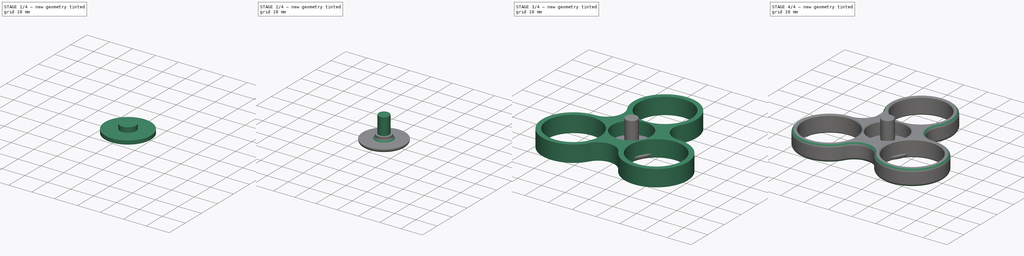
[diagram: build sequence overview — one tinted view per stage of 4, left to right]
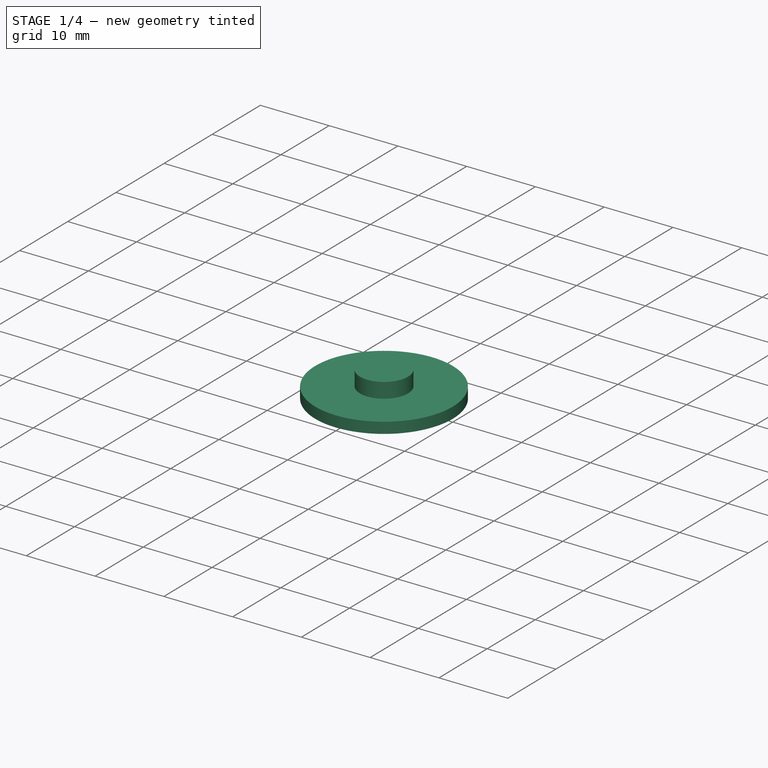
[diagram: stage 1 of 4 — iso view after this stage's code; geometry added in this stage tinted green]
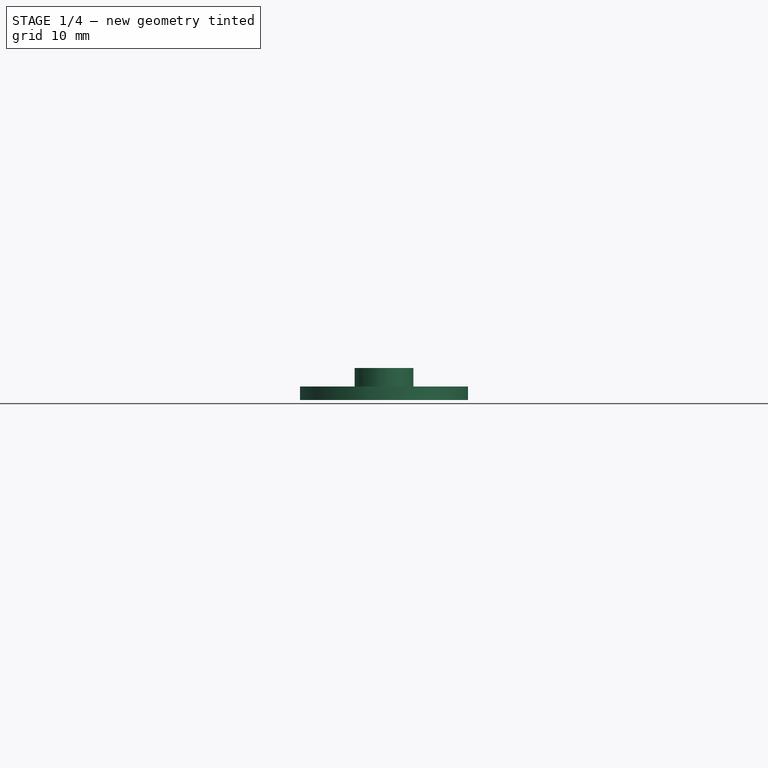
[diagram: stage 1 of 4 — front view after this stage's code; geometry added in this stage tinted green]
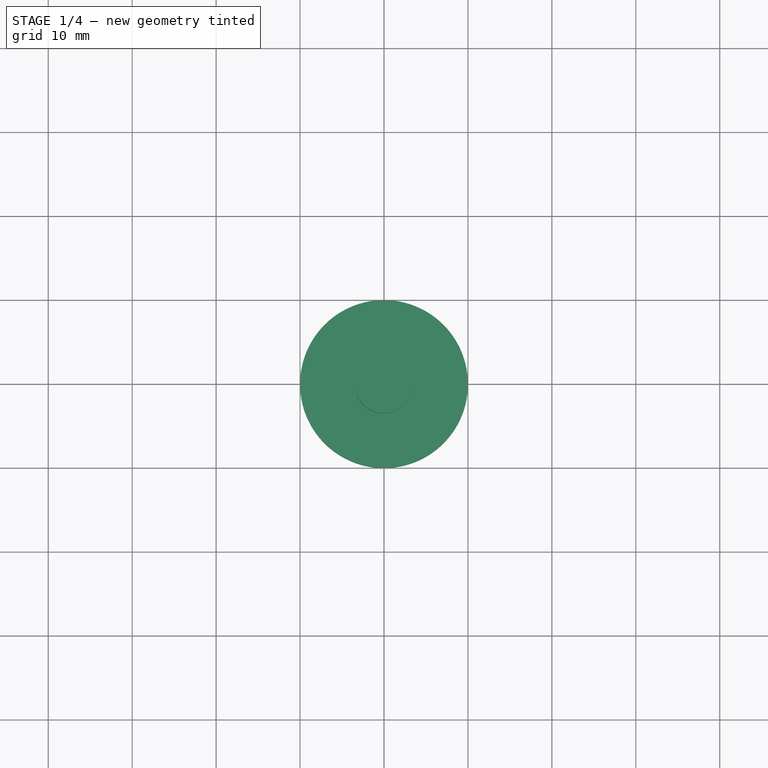
[diagram: stage 1 of 4 — top view after this stage's code; geometry added in this stage tinted green]
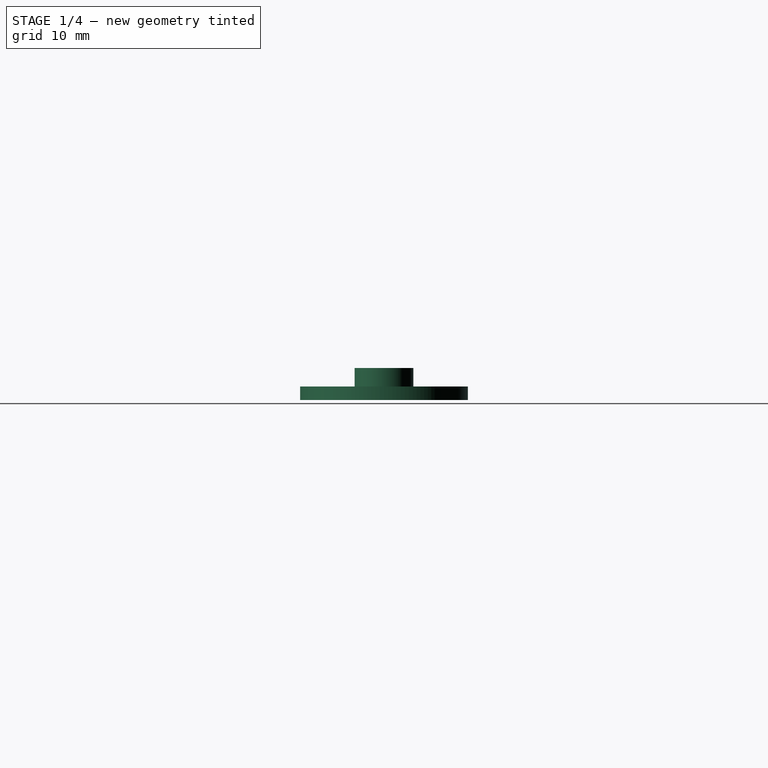
[diagram: stage 1 of 4 — right view after this stage's code; geometry added in this stage tinted green]
FCSTD DOCUMENT  (FreeCAD 0.18.2R)
Label: Spinner
License: All rights reserved
LicenseURL: http://en.wikipedia.org/wiki/All_rights_reserved
objects: Sketcher::SketchObject×5, PartDesign::Pad×4, PartDesign::Fillet×3, PartDesign::Body×3, PartDesign::Chamfer×1, PartDesign::FeatureBase×1, PartDesign::Pocket×1, App::Part×1
note: 23 computed .brp shape members not serialized (recipe doc carries the construction recipe); baked Part::Feature solids carry a one-line shape summary decoded from their .brp

FEATURE [PartDesign::Body] Body
  Group = -> [Sketch,Pad,Chamfer,Fillet]
  Origin = -> Origin001
  Tip = -> Fillet
FEATURE [Sketcher::SketchObject] Sketch001
  MapMode = 5
  Support = -> [XY_Plane002]
  sketch-geometry (3):
    g0: Circle CenterX=0 CenterY=0 CenterZ=0 NormalX=0 NormalY=0 NormalZ=1 AngleXU=0 Radius=10
    g1: Circle [constr] CenterX=0 CenterY=0 CenterZ=0 NormalX=0 NormalY=0 NormalZ=1 AngleXU=0 Radius=3.5
    g2: Circle [constr] CenterX=0 CenterY=0 CenterZ=0 NormalX=0 NormalY=0 NormalZ=1 AngleXU=0 Radius=2.52
  constraints (6):
    c: Coincident(g0,g-1)
    c: Radius(g0) = 10
    c: Coincident(g1,g0)
    c: Coincident(g2,g0)
    c: Radius(g1) = 3.5
    c: Radius(g2) = 2.52
FEATURE [PartDesign::Pad] Pad001
  Length = 1.6
  Length2 = 100
  Profile = -> Sketch001
  Type = 0
FEATURE [Sketcher::SketchObject] Sketch002
  AttachmentOffset = pos=(0,0,1.6) rot=(0,0,1;0rad)
  MapMode = 5
  Placement = pos=(0,0,1.6) rot=(0,0,1;0rad)
  Support = -> [XY_Plane002]
  expr: AttachmentOffset.Base.z = Pad001.Length
  sketch-geometry (3):
    g0: Circle [constr] CenterX=0 CenterY=0 CenterZ=0 NormalX=0 NormalY=0 NormalZ=1 AngleXU=0 Radius=9
    g1: Circle CenterX=0 CenterY=0 CenterZ=0 NormalX=0 NormalY=0 NormalZ=1 AngleXU=0 Radius=3.5
    g2: Circle [constr] CenterX=0 CenterY=0 CenterZ=0 NormalX=0 NormalY=0 NormalZ=1 AngleXU=0 Radius=2.4
  constraints (6):
    c: Coincident(g0,g-1)
    c: Radius(g0) = 9
    c: Coincident(g1,g0)
    c: Coincident(g2,g0)
    c: Radius(g1) = 3.5
    c: Radius(g2) = 2.4
FEATURE [Sketcher::SketchObject] Sketch003
  AttachmentOffset = pos=(0,0,3.8) rot=(0,0,1;0rad)
  MapMode = 5
  Placement = pos=(0,0,3.8) rot=(0,0,1;0rad)
  Support = -> [XY_Plane002]
  expr: AttachmentOffset.Base.z = Sketch002.Placement.Base.z + Pad002.Length
  sketch-geometry (3):
    g0: Circle [constr] CenterX=0 CenterY=0 CenterZ=0 NormalX=0 NormalY=0 NormalZ=1 AngleXU=0 Radius=9
    g1: Circle [constr] CenterX=0 CenterY=0 CenterZ=0 NormalX=0 NormalY=0 NormalZ=1 AngleXU=0 Radius=3.5
    g2: Circle CenterX=0 CenterY=0 CenterZ=0 NormalX=0 NormalY=0 NormalZ=1 AngleXU=0 Radius=2.53
  constraints (6):
    c: Coincident(g0,g-1)
    c: Radius(g0) = 9
    c: Coincident(g1,g0)
    c: Coincident(g2,g0)
    c: Radius(g1) = 3.5
    c: Radius(g2) = 2.53
FEATURE [PartDesign::Pad] Pad002
  BaseFeature = -> Pad001
  Length = 2.2
  Length2 = 100
  Profile = -> Sketch002
  Type = 0
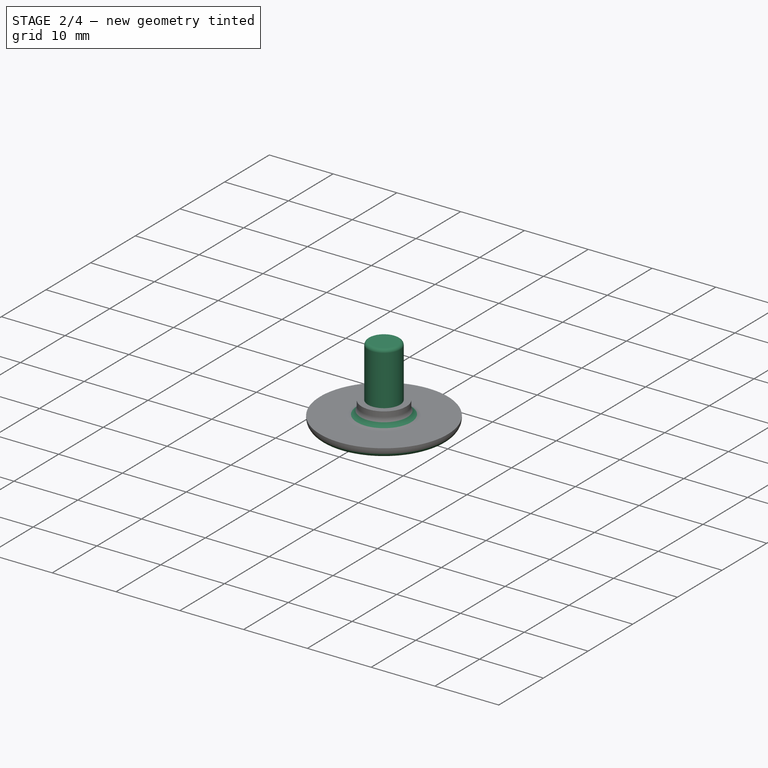
[diagram: stage 2 of 4 — iso view after this stage's code; geometry added in this stage tinted green]
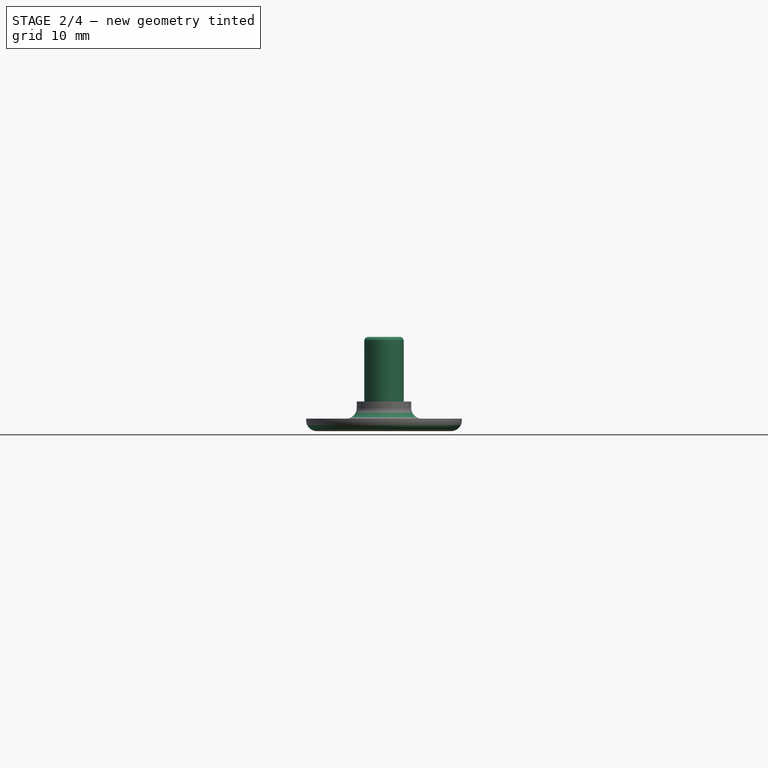
[diagram: stage 2 of 4 — front view after this stage's code; geometry added in this stage tinted green]
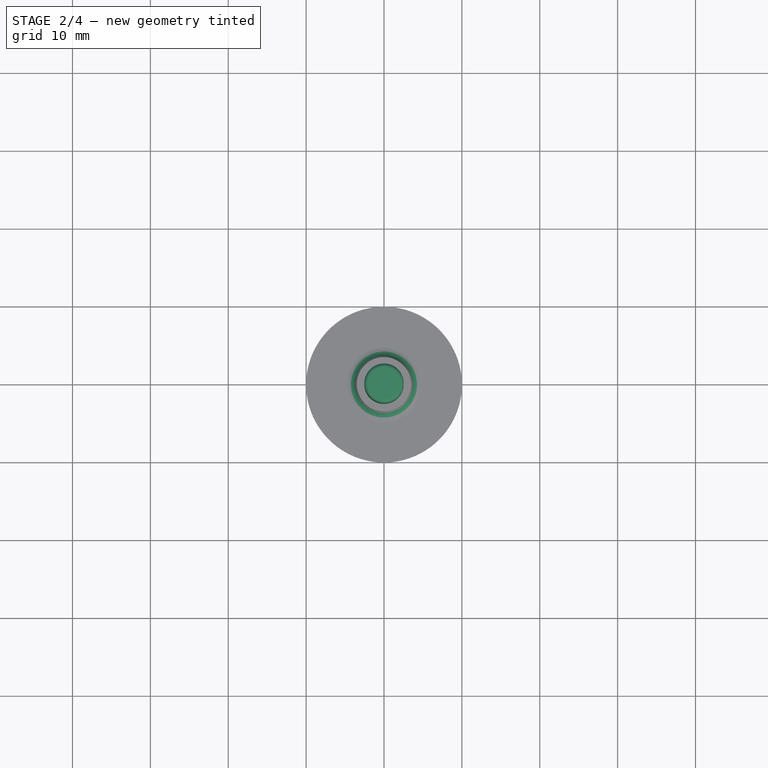
[diagram: stage 2 of 4 — top view after this stage's code; geometry added in this stage tinted green]
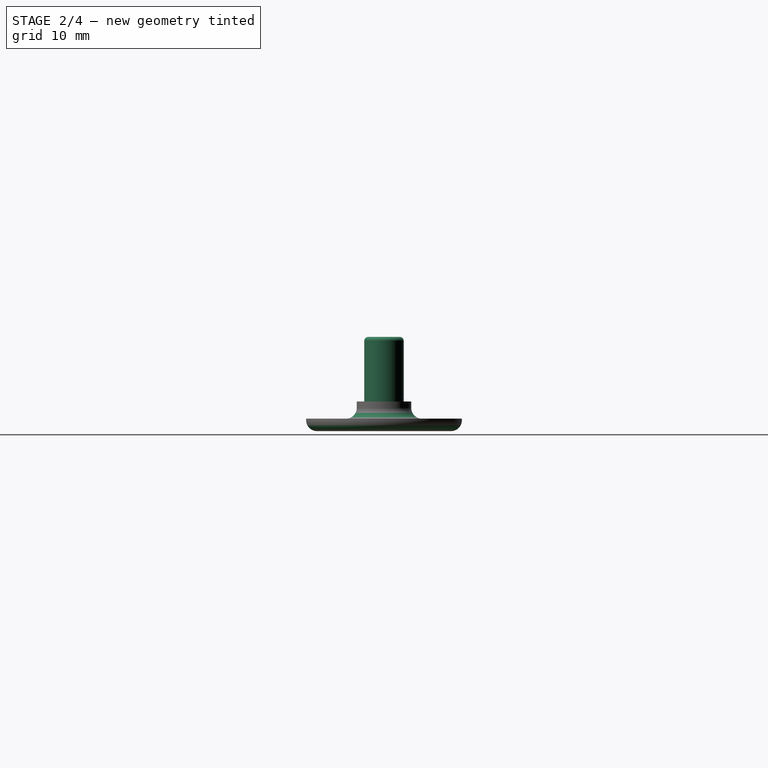
[diagram: stage 2 of 4 — right view after this stage's code; geometry added in this stage tinted green]
FEATURE [PartDesign::Fillet] Fillet001
  Base = -> Pad002 [Edge2,Edge4]
  BaseFeature = -> Pad002
  Radius = 1.39
FEATURE [Sketcher::SketchObject] Sketch004
  AttachmentOffset = pos=(0,0,3.8) rot=(0,0,1;0rad)
  MapMode = 5
  Placement = pos=(0,0,3.8) rot=(0,0,1;0rad)
  Support = -> [XY_Plane003]
  expr: AttachmentOffset.Base.z = Sketch002.Placement.Base.z + Pad002.Length
  sketch-geometry (3):
    g0: Circle [constr] CenterX=0 CenterY=0 CenterZ=0 NormalX=0 NormalY=0 NormalZ=1 AngleXU=0 Radius=9
    g1: Circle [constr] CenterX=0 CenterY=0 CenterZ=0 NormalX=0 NormalY=0 NormalZ=1 AngleXU=0 Radius=3.5
    g2: Circle CenterX=0 CenterY=0 CenterZ=0 NormalX=0 NormalY=0 NormalZ=1 AngleXU=0 Radius=2.63
  constraints (6):
    c: Coincident(g0,g-1)
    c: Radius(g0) = 9
    c: Coincident(g1,g0)
    c: Coincident(g2,g0)
    c: Radius(g1) = 3.5
    c: Radius(g2) = 2.63
FEATURE [PartDesign::Pad] Pad003
  BaseFeature = -> Fillet001
  Length = 8.3
  Length2 = 100
  Profile = -> Sketch003
  Type = 0
FEATURE [PartDesign::Body] Body002
  Group = -> [Clone,Sketch004,Pocket]
  Origin = -> Origin003
  Placement = pos=(22,0,0) rot=(0,0,1;0rad)
  Tip = -> Pocket
FEATURE [PartDesign::Fillet] Fillet002
  Base = -> Pad003 [Face9]
  BaseFeature = -> Pad003
  Radius = 0.5
FEATURE [PartDesign::Body] Body001  label="Center"
  Group = -> [Sketch001,Pad001,Sketch002,Pad002,Fillet001,Sketch003,Pad003,Fillet002]
  Origin = -> Origin002
  Tip = -> Fillet002
FEATURE [App::Part] Part
  Group = -> [Body,Body001,Body002]
  Origin = -> Origin
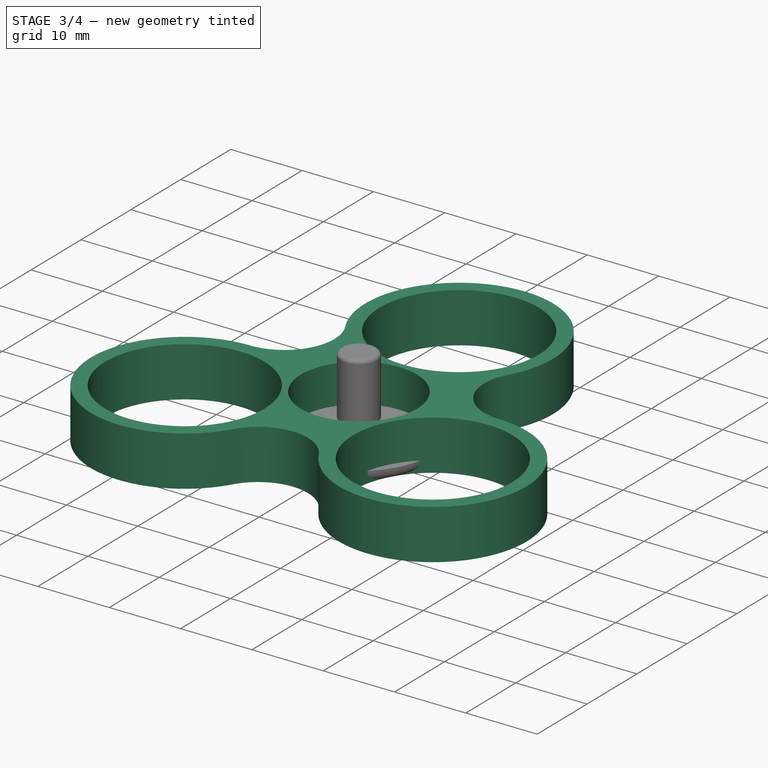
[diagram: stage 3 of 4 — iso view after this stage's code; geometry added in this stage tinted green]
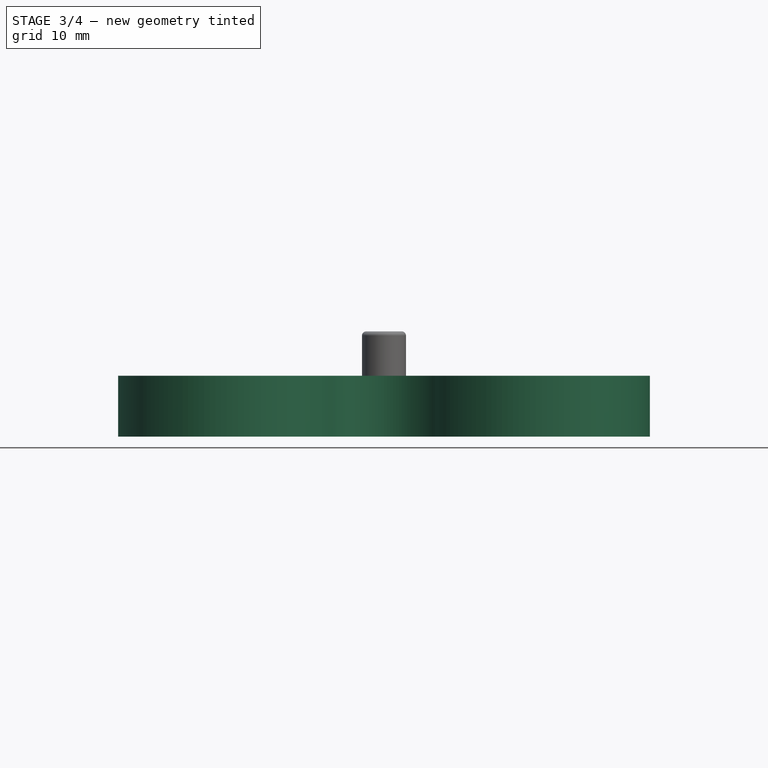
[diagram: stage 3 of 4 — front view after this stage's code; geometry added in this stage tinted green]
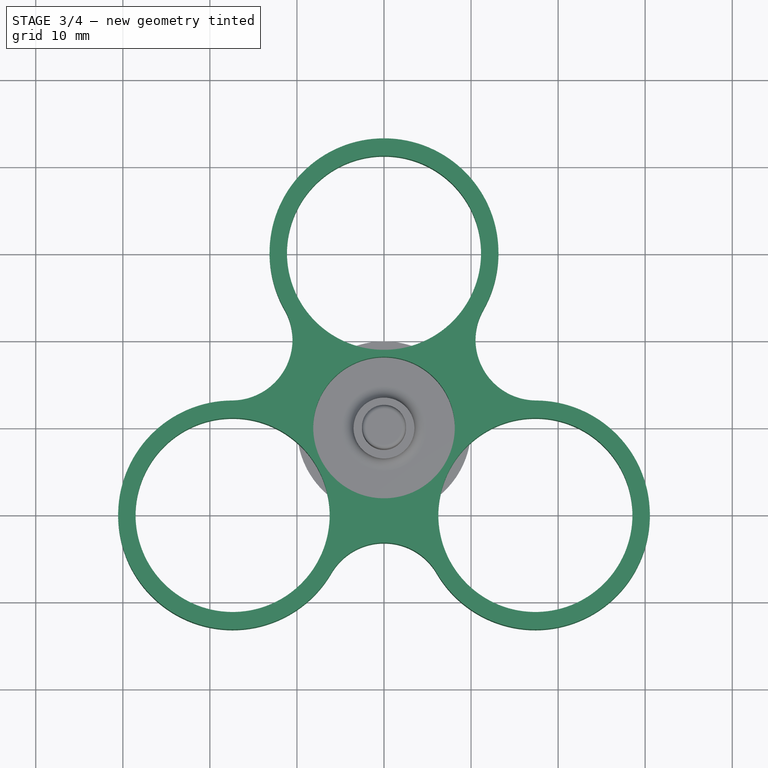
[diagram: stage 3 of 4 — top view after this stage's code; geometry added in this stage tinted green]
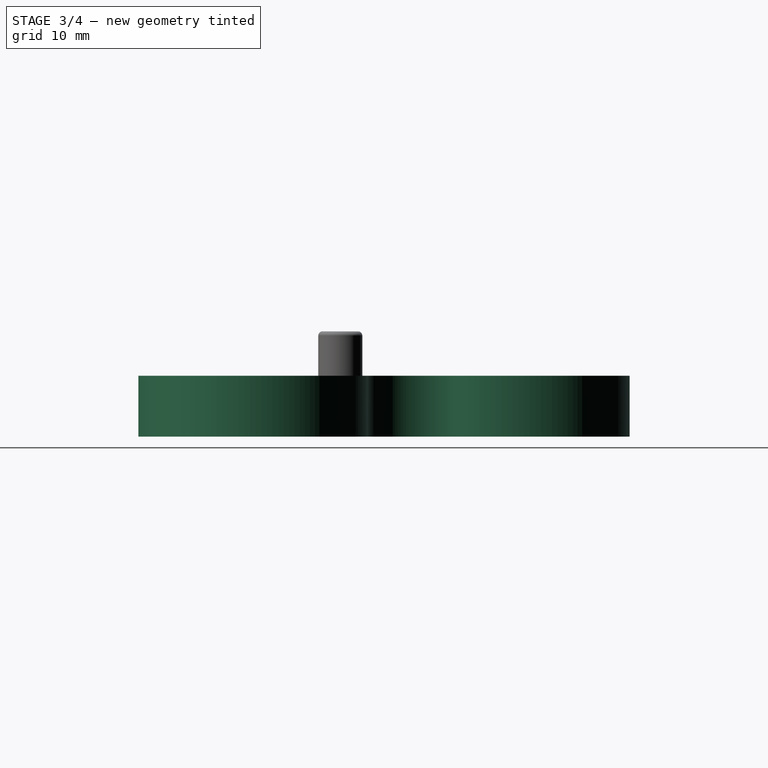
[diagram: stage 3 of 4 — right view after this stage's code; geometry added in this stage tinted green]
FEATURE [Sketcher::SketchObject] Sketch
  MapMode = 5
  Support = -> [XY_Plane001]
  sketch-geometry (16):
    g0: Circle CenterX=0 CenterY=20.08 CenterZ=0 NormalX=0 NormalY=0 NormalZ=1 AngleXU=0 Radius=11.15
    g1: Circle CenterX=-17.3898 CenterY=-10.04 CenterZ=0 NormalX=0 NormalY=0 NormalZ=1 AngleXU=0 Radius=11.15
    g2: Circle CenterX=17.3898 CenterY=-10.04 CenterZ=0 NormalX=0 NormalY=0 NormalZ=1 AngleXU=0 Radius=11.15
    g3: Circle CenterX=0 CenterY=0 CenterZ=0 NormalX=0 NormalY=0 NormalZ=1 AngleXU=0 Radius=8.13
    g4: LineSegment [constr] StartX=0 StartY=20.08 StartZ=0 EndX=-17.3898 EndY=-10.04 EndZ=0
    g5: LineSegment [constr] StartX=-17.3898 StartY=-10.04 StartZ=0 EndX=17.3898 EndY=-10.04 EndZ=0
    g6: LineSegment [constr] StartX=17.3898 StartY=-10.04 StartZ=0 EndX=0 EndY=20.08 EndZ=0
    g7: Circle [constr] CenterX=0 CenterY=0 CenterZ=0 NormalX=0 NormalY=0 NormalZ=1 AngleXU=0 Radius=8.93
    g8: LineSegment [constr] StartX=0 StartY=8.93 StartZ=0 EndX=0 EndY=8.13 EndZ=0
    g9: ArcOfCircle CenterX=-17.3898 CenterY=-10.04 CenterZ=0 NormalX=0 NormalY=0 NormalZ=1 AngleXU=0 Radius=13.15 StartAngle=1.57678 EndAngle=5.7536
    g10: ArcOfCircle CenterX=0 CenterY=20.08 CenterZ=0 NormalX=0 NormalY=0 NormalZ=1 AngleXU=0 Radius=13.15 StartAngle=5.76557 EndAngle=9.94239
    g11: ArcOfCircle CenterX=17.3898 CenterY=-10.04 CenterZ=0 NormalX=0 NormalY=0 NormalZ=1 AngleXU=0 Radius=13.15 StartAngle=3.67118 EndAngle=7.848
    g12: ArcOfCircle CenterX=-17.5104 CenterY=10.1096 CenterZ=0 NormalX=0 NormalY=0 NormalZ=1 AngleXU=0 Radius=7 StartAngle=4.71838 EndAngle=6.8008
    g13: LineSegment [constr] StartX=1.4e-15 StartY=31.23 StartZ=0 EndX=1.4e-15 EndY=33.23 EndZ=0
    g14: ArcOfCircle CenterX=17.5104 CenterY=10.1096 CenterZ=0 NormalX=0 NormalY=0 NormalZ=1 AngleXU=0 Radius=7 StartAngle=2.62398 EndAngle=4.7064
    g15: ArcOfCircle CenterX=-1.1e-15 CenterY=-20.2193 CenterZ=0 NormalX=0 NormalY=0 NormalZ=1 AngleXU=0 Radius=7 StartAngle=0.529585 EndAngle=2.61201
  constraints (42):
    c: Equal(g1,g0)
    c: Radius(g0) = 11.15
    c: Coincident(g4,g0)
    c: Coincident(g4,g1)
    c: Coincident(g5,g1)
    c: Coincident(g5,g2)
    c: Coincident(g6,g2)
    c: Coincident(g6,g0)
    c: Equal(g4,g6)
    c: Equal(g6,g5)
    c: Coincident(g7,g3)
    c: PointOnObject(g8,g7)
    c: PointOnObject(g8,g3)
    c: Vertical(g8)
    c: PointOnObject(g3,g8)
    c: DistanceY(g8,g8) = 0.8
    c: Tangent(g7,g0)
    c: Tangent(g7,g1)
    c: Tangent(g7,g2)
    c: Horizontal(g5)
    c: Coincident(g9,g1)
    c: Coincident(g10,g0)
    c: Coincident(g11,g2)
    c: Equal(g9,g11)
    c: Equal(g11,g10)
    c: Tangent(g10,g12) = 1.5708
    c: Tangent(g9,g12) = 1.5708
    c: PointOnObject(g13,g0)
    c: PointOnObject(g13,g10)
    c: Vertical(g13)
    c: PointOnObject(g0,g13)
    c: DistanceY(g13,g13) = 2
    c: Tangent(g10,g14) = 1.5708
    c: Tangent(g11,g14) = 1.5708
    c: Tangent(g9,g15) = 1.5708
    c: Tangent(g11,g15) = 1.5708
    c: Coincident(g3,g-1)  '___ANCHOR___'
    c: Equal(g1,g2)
    c: Radius(g3) = 8.13
    c: Equal(g12,g14)
    c: Equal(g14,g15)
    c: Radius(g12) = 7
FEATURE [PartDesign::Pad] Pad
  Length = 7
  Length2 = 100
  Profile = -> Sketch
  Type = 0
FEATURE [PartDesign::FeatureBase] Clone
  BaseFeature = -> Fillet001
FEATURE [PartDesign::Pocket] Pocket
  BaseFeature = -> Clone
  Length = 3.4
  Length2 = 100
  Profile = -> Sketch004
  Type = 0
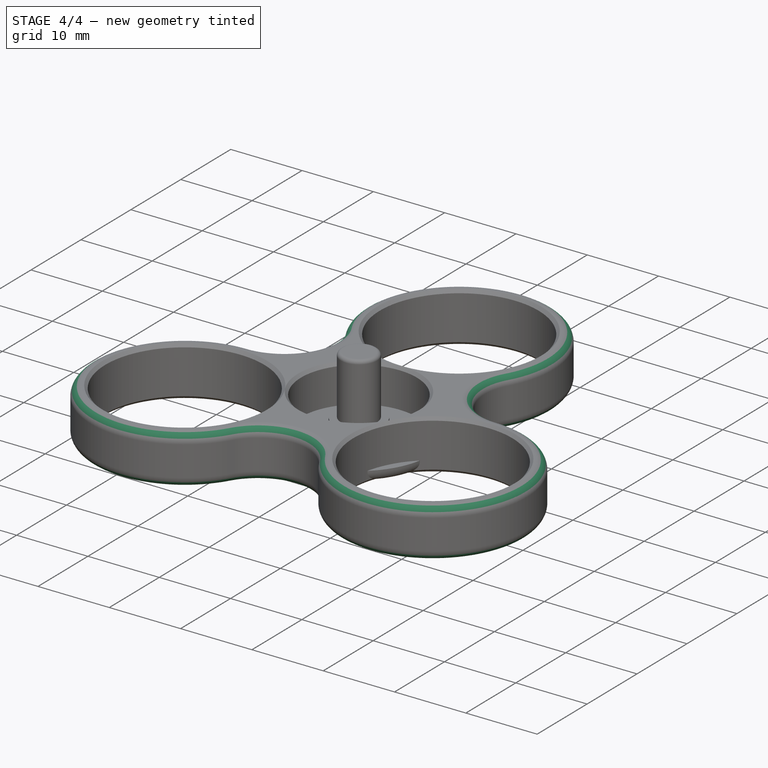
[diagram: stage 4 of 4 — iso view after this stage's code; geometry added in this stage tinted green]
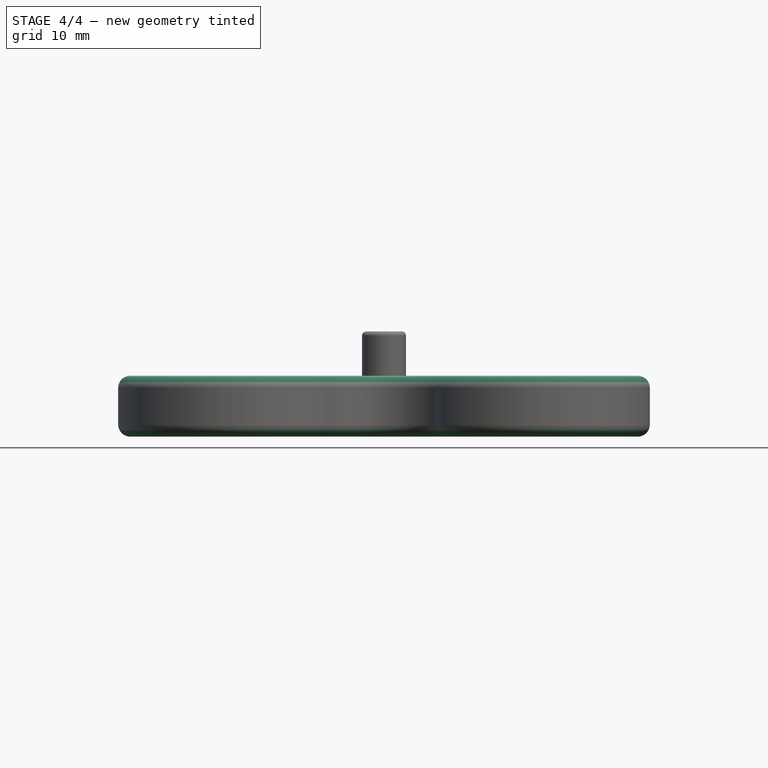
[diagram: stage 4 of 4 — front view after this stage's code; geometry added in this stage tinted green]
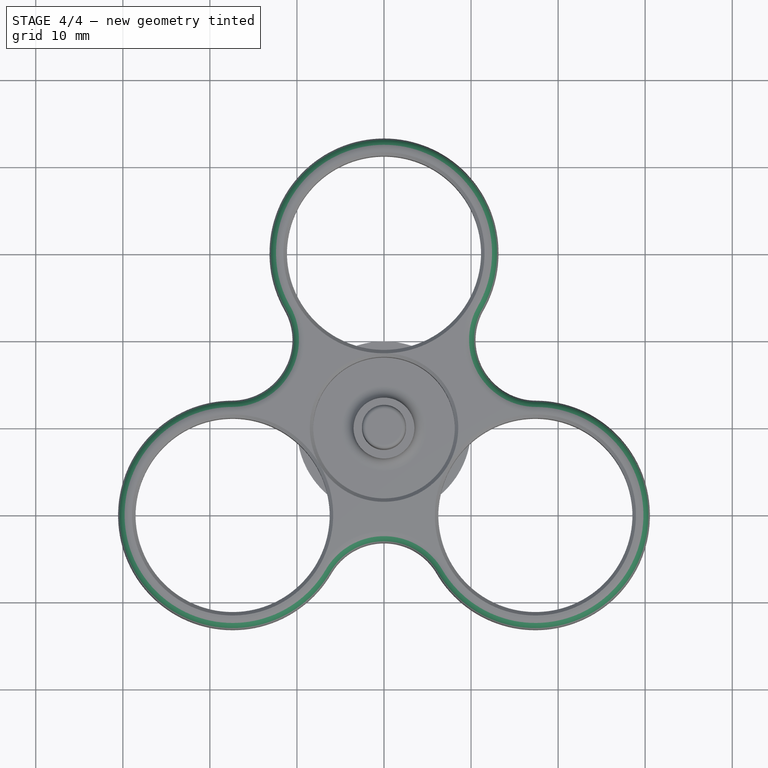
[diagram: stage 4 of 4 — top view after this stage's code; geometry added in this stage tinted green]
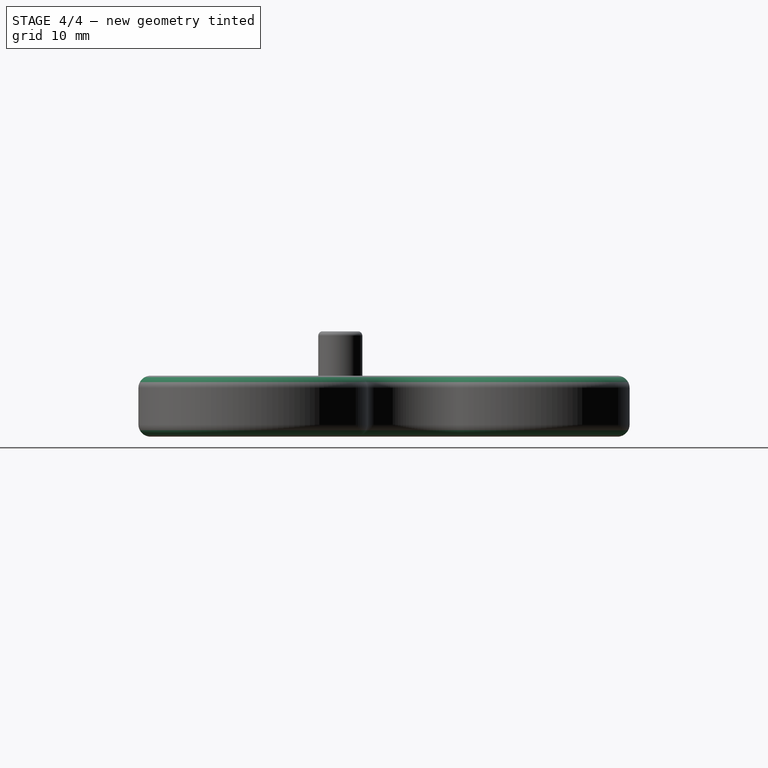
[diagram: stage 4 of 4 — right view after this stage's code; geometry added in this stage tinted green]
FEATURE [PartDesign::Chamfer] Chamfer
  Base = -> Pad [Face8,Face7,Face10,Face9]
  BaseFeature = -> Pad
  Size = 0.39999
FEATURE [PartDesign::Fillet] Fillet
  Base = -> Chamfer [Face12]
  BaseFeature = -> Chamfer
  Radius = 1.4
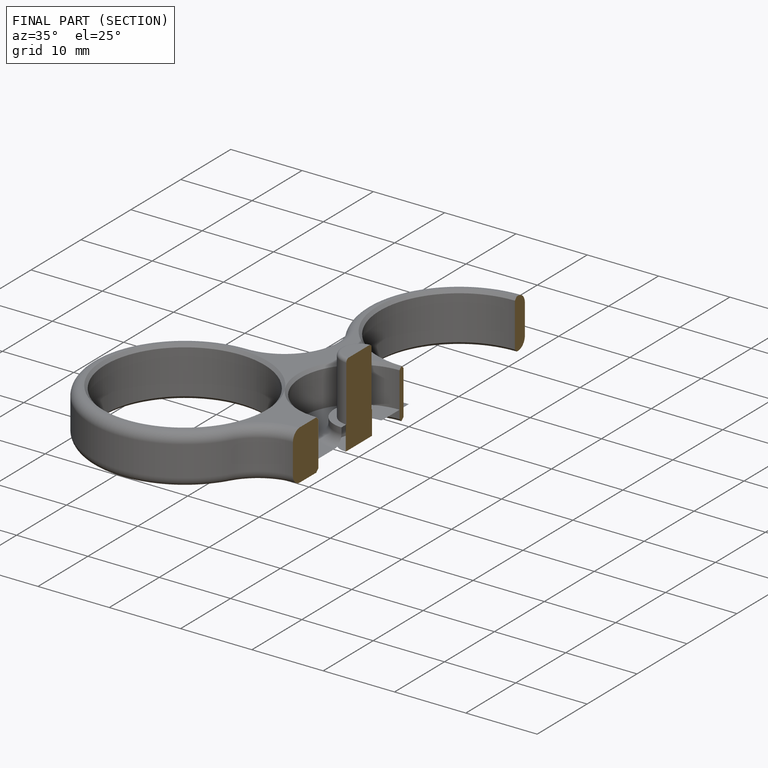
[diagram: finished part — half-section view (interior)]
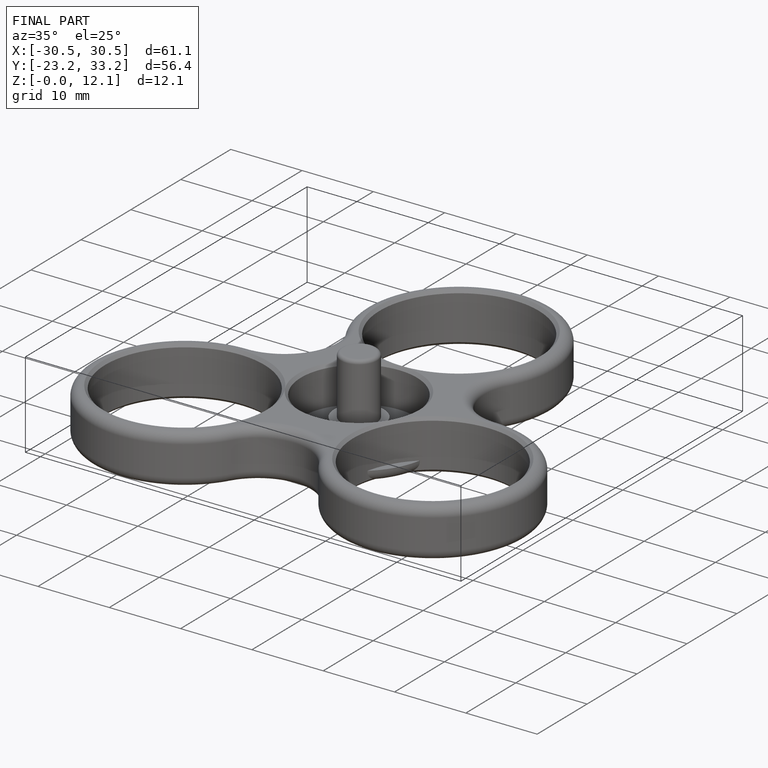
[diagram: finished part — iso view with bounding-box wireframe]
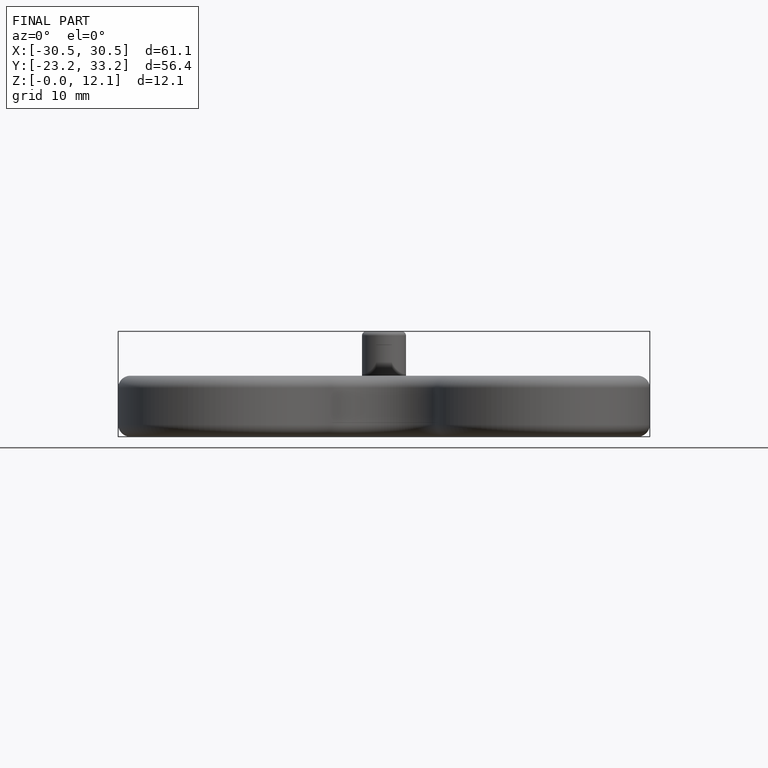
[diagram: finished part — front view with bounding-box wireframe]
